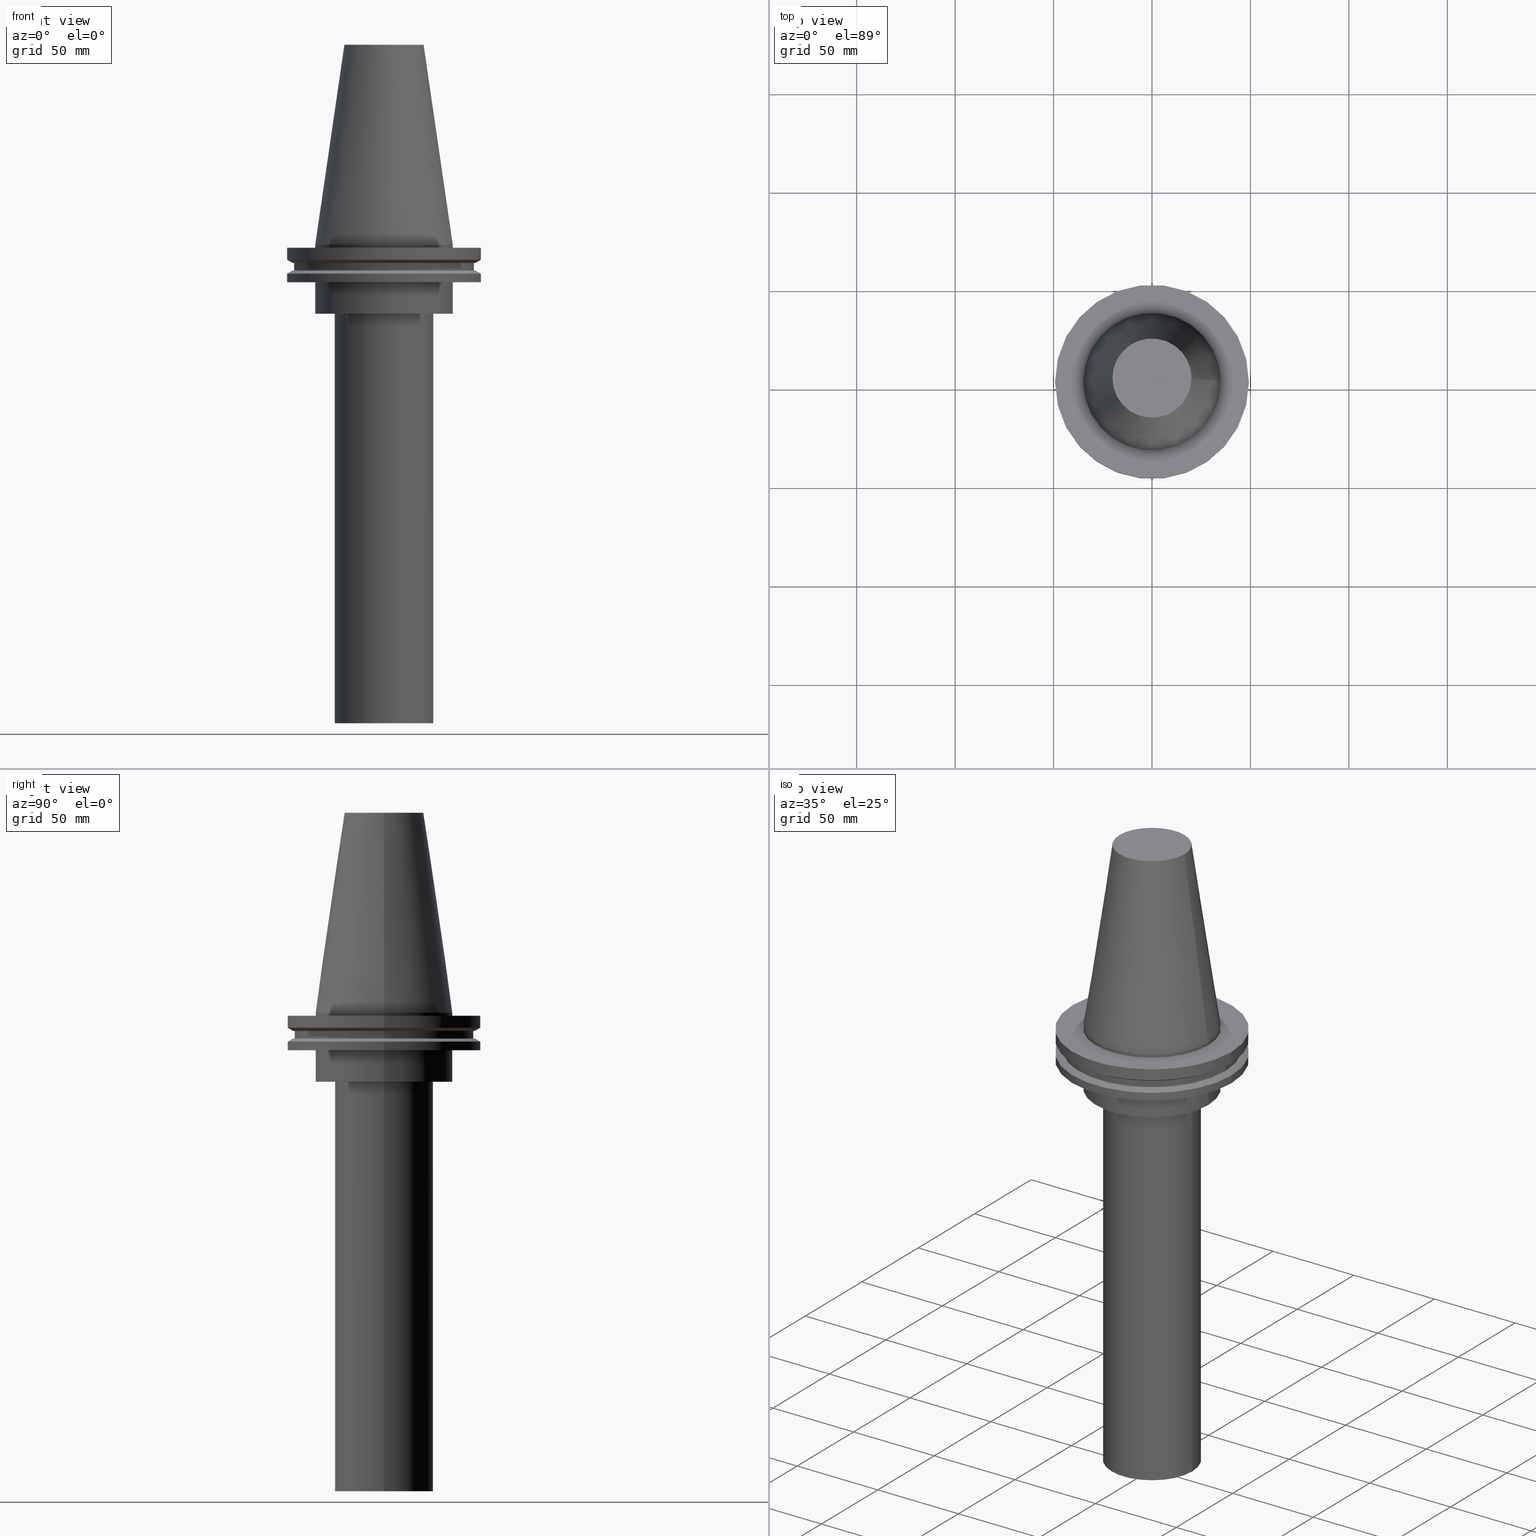
[diagram: canonical four-view strip — front | top / right | iso, engineering-drawing reading convention]
A machine part, canonical four-view strip (front | top / right | iso — engineering-drawing reading convention). The complete STEP part file that produces these views, byte-faithful:
ISO-10303-21;
HEADER;
FILE_DESCRIPTION (( 'STEP AP203' ),
    '1' );
FILE_NAME ('11.368.656.stp',
    '2022-03-09T15:21:32',
    ( '' ),
    ( '' ),
    'SwSTEP 2.0',
    'SolidWorks 2021',
    '' );
FILE_SCHEMA (( 'CONFIG_CONTROL_DESIGN' ));
ENDSEC;

DATA;
#1 = FACE_OUTER_BOUND ( 'NONE', #138, .T. ) ;
#2 = CIRCLE ( 'NONE', #220, 34.92499999999999005 ) ;
#3 = DIRECTION ( 'NONE',  ( 1.000000000000000000, 0.000000000000000000, 0.000000000000000000 ) ) ;
#4 = DIRECTION ( 'NONE',  ( 1.000000000000000000, 0.000000000000000000, 0.000000000000000000 ) ) ;
#5 = CARTESIAN_POINT ( 'NONE',  ( 0.000000000000000000, 0.000000000000000000, -9.204999999999991189 ) ) ;
#6 = CIRCLE ( 'NONE', #282, 34.92499999999999716 ) ;
#7 = CIRCLE ( 'NONE', #78, 46.43919780457007818 ) ;
#8 = PERSON_AND_ORGANIZATION_ROLE ( 'design_supplier' ) ;
#9 = FACE_OUTER_BOUND ( 'NONE', #21, .T. ) ;
#10 = EDGE_CURVE ( 'NONE', #172, #172, #311, .T. ) ;
#11 = DIRECTION ( 'NONE',  ( 1.000000000000000000, 0.000000000000000000, 0.000000000000000000 ) ) ;
#12 = ORIENTED_EDGE ( 'NONE', *, *, #315, .F. ) ;
#13 = PLANE ( 'NONE',  #344 ) ;
#14 = AXIS2_PLACEMENT_3D ( 'NONE', #79, #18, #139 ) ;
#15 = CARTESIAN_POINT ( 'NONE',  ( 0.000000000000000000, 0.000000000000000000, -35.00000000000000000 ) ) ;
#16 = CARTESIAN_POINT ( 'NONE',  ( 34.92499999999999005, 0.000000000000000000, 0.000000000000000000 ) ) ;
#17 = EDGE_LOOP ( 'NONE', ( #382 ) ) ;
#18 = DIRECTION ( 'NONE',  ( -0.000000000000000000, -0.000000000000000000, 1.000000000000000000 ) ) ;
#19 = AXIS2_PLACEMENT_3D ( 'NONE', #223, #194, #99 ) ;
#20 = DIRECTION ( 'NONE',  ( 1.000000000000000000, 0.000000000000000000, 0.000000000000000000 ) ) ;
#21 = EDGE_LOOP ( 'NONE', ( #173 ) ) ;
#22 = EDGE_LOOP ( 'NONE', ( #327 ) ) ;
#23 = ADVANCED_FACE ( 'NONE', ( #51, #144 ), #266, .T. ) ;
#24 = CARTESIAN_POINT ( 'NONE',  ( 45.64500000000000313, 0.000000000000000000, -9.204999999999991189 ) ) ;
#25 = FACE_BOUND ( 'NONE', #365, .T. ) ;
#26 = DATE_AND_TIME ( #332, #242 ) ;
#27 = FACE_BOUND ( 'NONE', #22, .T. ) ;
#28 = CARTESIAN_POINT ( 'NONE',  ( 0.000000000000000000, 0.000000000000000000, 0.000000000000000000 ) ) ;
#29 = CARTESIAN_POINT ( 'NONE',  ( 0.000000000000000000, 0.000000000000000000, 0.000000000000000000 ) ) ;
#30 = AXIS2_PLACEMENT_3D ( 'NONE', #170, #81, #300 ) ;
#31 = FACE_OUTER_BOUND ( 'NONE', #326, .T. ) ;
#32 = COORDINATED_UNIVERSAL_TIME_OFFSET ( 6, 0, .BEHIND. ) ;
#33 = DIRECTION ( 'NONE',  ( 1.000000000000000000, 0.000000000000000000, 0.000000000000000000 ) ) ;
#34 = CARTESIAN_POINT ( 'NONE',  ( 0.000000000000000000, 0.000000000000000000, -1.499999999999987566 ) ) ;
#35 = DIRECTION ( 'NONE',  ( 1.000000000000000000, 0.000000000000000000, 0.000000000000000000 ) ) ;
#36 = LOCAL_TIME ( 9, 21, 32.00000000000000000, #165 ) ;
#37 = DIRECTION ( 'NONE',  ( -0.000000000000000000, -0.000000000000000000, 1.000000000000000000 ) ) ;
#38 = EDGE_LOOP ( 'NONE', ( #102 ) ) ;
#39 = CALENDAR_DATE ( 2022, 9, 3 ) ;
#40 = CARTESIAN_POINT ( 'NONE',  ( 0.000000000000000000, 0.000000000000000000, -13.05499999999999794 ) ) ;
#41 = PERSON_AND_ORGANIZATION ( #56, #125 ) ;
#42 = DIRECTION ( 'NONE',  ( -0.000000000000000000, -0.000000000000000000, 1.000000000000000000 ) ) ;
#43 = ADVANCED_FACE ( 'NONE', ( #169, #386 ), #107, .F. ) ;
#44 = ORIENTED_EDGE ( 'NONE', *, *, #50, .T. ) ;
#45 = EDGE_LOOP ( 'NONE', ( #320 ) ) ;
#46 = CIRCLE ( 'NONE', #204, 20.10819343178871321 ) ;
#47 = CC_DESIGN_PERSON_AND_ORGANIZATION_ASSIGNMENT ( #177, #155, ( #72 ) ) ;
#48 = ORIENTED_EDGE ( 'NONE', *, *, #10, .T. ) ;
#49 = EDGE_LOOP ( 'NONE', ( #394 ) ) ;
#50 = EDGE_CURVE ( 'NONE', #261, #261, #276, .T. ) ;
#51 = FACE_OUTER_BOUND ( 'NONE', #203, .T. ) ;
#52 = CIRCLE ( 'NONE', #92, 25.00000000000000000 ) ;
#53 = APPROVAL_PERSON_ORGANIZATION ( #211, #231, #57 ) ;
#54 = VERTEX_POINT ( 'NONE', #59 ) ;
#55 = CARTESIAN_POINT ( 'NONE',  ( 0.000000000000000000, 49.21499999999999631, -1.499999999999992895 ) ) ;
#56 = PERSON ( 'UNSPECIFIED', 'UNSPECIFIED', 'UNSPECIFIED', ('UNSPECIFIED'), ('UNSPECIFIED'), ('UNSPECIFIED') ) ;
#57 = APPROVAL_ROLE ( '' ) ;
#58 = DIRECTION ( 'NONE',  ( 1.000000000000000000, 0.000000000000000000, 0.000000000000000000 ) ) ;
#59 = CARTESIAN_POINT ( 'NONE',  ( 34.92499999999999716, 0.000000000000000000, -35.00000000000000000 ) ) ;
#60 = DIRECTION ( 'NONE',  ( -1.000000000000000000, 0.000000000000000000, -0.000000000000000000 ) ) ;
#61 = PLANE ( 'NONE',  #171 ) ;
#62 = CARTESIAN_POINT ( 'NONE',  ( 0.000000000000000000, 0.000000000000000000, -9.204999999999991189 ) ) ;
#63 = CARTESIAN_POINT ( 'NONE',  ( 0.000000000000000000, 0.000000000000000000, 101.5999999999999943 ) ) ;
#64 = AXIS2_PLACEMENT_3D ( 'NONE', #295, #73, #20 ) ;
#65 = APPROVAL_PERSON_ORGANIZATION ( #189, #392, #159 ) ;
#66 = APPROVAL_DATE_TIME ( #323, #231 ) ;
#67 = DIRECTION ( 'NONE',  ( -0.000000000000000000, -0.000000000000000000, 1.000000000000000000 ) ) ;
#68 = DATE_AND_TIME ( #39, #36 ) ;
#69 = CARTESIAN_POINT ( 'NONE',  ( 0.000000000000000000, 0.000000000000000000, 0.000000000000000000 ) ) ;
#70 = VERTEX_POINT ( 'NONE', #264 ) ;
#71 = AXIS2_PLACEMENT_3D ( 'NONE', #86, #183, #309 ) ;
#72 = PRODUCT ( '11.368.656', '11.368.656', '', ( #152 ) ) ;
#73 = DIRECTION ( 'NONE',  ( 0.000000000000000000, -0.000000000000000000, 1.000000000000000000 ) ) ;
#74 = ADVANCED_FACE ( 'NONE', ( #123, #88 ), #84, .T. ) ;
#75 = ORIENTED_EDGE ( 'NONE', *, *, #207, .F. ) ;
#76 = EDGE_LOOP ( 'NONE', ( #12 ) ) ;
#77 = AXIS2_PLACEMENT_3D ( 'NONE', #34, #67, #161 ) ;
#78 = AXIS2_PLACEMENT_3D ( 'NONE', #232, #143, #267 ) ;
#79 = CARTESIAN_POINT ( 'NONE',  ( 0.000000000000000000, 0.000000000000000000, -7.602389855251287187 ) ) ;
#80 = CARTESIAN_POINT ( 'NONE',  ( 49.21499999999998920, 0.000000000000000000, -14.65761014474876944 ) ) ;
#81 = DIRECTION ( 'NONE',  ( -0.000000000000000000, -0.000000000000000000, 1.000000000000000000 ) ) ;
#82 = CC_DESIGN_PERSON_AND_ORGANIZATION_ASSIGNMENT ( #83, #307, ( #312 ) ) ;
#83 = PERSON_AND_ORGANIZATION ( #56, #125 ) ;
#84 = CYLINDRICAL_SURFACE ( 'NONE', #197, 34.92499999999999716 ) ;
#85 = COORDINATED_UNIVERSAL_TIME_OFFSET ( 6, 0, .BEHIND. ) ;
#86 = CARTESIAN_POINT ( 'NONE',  ( 0.000000000000000000, 0.000000000000000000, -243.0000000000000000 ) ) ;
#87 = ADVANCED_FACE ( 'NONE', ( #25, #1 ), #124, .T. ) ;
#88 = FACE_OUTER_BOUND ( 'NONE', #202, .T. ) ;
#89 =( NAMED_UNIT ( * ) SI_UNIT ( $, .STERADIAN. ) SOLID_ANGLE_UNIT ( ) );
#90 = CARTESIAN_POINT ( 'NONE',  ( 0.000000000000000000, 25.00000000000000000, -243.0000000000000000 ) ) ;
#91 = CC_DESIGN_APPROVAL ( #392, ( #387 ) ) ;
#92 = AXIS2_PLACEMENT_3D ( 'NONE', #151, #185, #58 ) ;
#93 = DIRECTION ( 'NONE',  ( 1.000000000000000000, 0.000000000000000000, 0.000000000000000000 ) ) ;
#94 = ADVANCED_FACE ( 'NONE', ( #212 ), #187, .F. ) ;
#95 = ADVANCED_BREP_SHAPE_REPRESENTATION ( '11.368.656', ( #222, #351 ), #306 ) ;
#96 = CARTESIAN_POINT ( 'NONE',  ( 0.000000000000000000, 20.10819343178871321, 101.5999999999999943 ) ) ;
#97 = CC_DESIGN_PERSON_AND_ORGANIZATION_ASSIGNMENT ( #41, #8, ( #226 ) ) ;
#98 = PERSON_AND_ORGANIZATION_ROLE ( 'creator' ) ;
#99 = DIRECTION ( 'NONE',  ( 1.000000000000000000, 0.000000000000000000, 0.000000000000000000 ) ) ;
#100 = UNCERTAINTY_MEASURE_WITH_UNIT (LENGTH_MEASURE( 1.000000000000000082E-05 ), #184, 'distance_accuracy_value', 'NONE');
#101 = DIRECTION ( 'NONE',  ( -0.000000000000000000, -0.000000000000000000, 1.000000000000000000 ) ) ;
#102 = ORIENTED_EDGE ( 'NONE', *, *, #337, .F. ) ;
#103 = DIRECTION ( 'NONE',  ( -0.000000000000000000, -0.000000000000000000, 1.000000000000000000 ) ) ;
#104 = PRODUCT_RELATED_PRODUCT_CATEGORY ( 'detail', '', ( #72 ) ) ;
#105 = DIRECTION ( 'NONE',  ( 0.000000000000000000, 0.000000000000000000, -1.000000000000000000 ) ) ;
#106 = APPLICATION_CONTEXT ( 'configuration controlled 3d designs of mechanical parts and assemblies' ) ;
#107 = PLANE ( 'NONE',  #64 ) ;
#108 = CIRCLE ( 'NONE', #134, 34.92499999999999005 ) ;
#109 = ADVANCED_FACE ( 'NONE', ( #278, #341 ), #248, .F. ) ;
#110 = CC_DESIGN_APPROVAL ( #247, ( #312 ) ) ;
#111 = DIRECTION ( 'NONE',  ( 1.000000000000000000, 0.000000000000000000, 0.000000000000000000 ) ) ;
#112 = EDGE_LOOP ( 'NONE', ( #330 ) ) ;
#113 = EDGE_LOOP ( 'NONE', ( #233 ) ) ;
#114 = ORIENTED_EDGE ( 'NONE', *, *, #353, .T. ) ;
#115 = ADVANCED_FACE ( 'NONE', ( #216, #27 ), #61, .F. ) ;
#116 = CARTESIAN_POINT ( 'NONE',  ( 49.21499999999998920, 0.000000000000000000, -19.04999999999999716 ) ) ;
#117 = CYLINDRICAL_SURFACE ( 'NONE', #329, 45.64500000000000313 ) ;
#118 = PLANE ( 'NONE',  #186 ) ;
#119 = CLOSED_SHELL ( 'NONE', ( #225, #229, #43, #74, #150, #294, #87, #109, #162, #115, #322, #280, #179, #23, #263, #94 ) ) ;
#120 = APPLICATION_PROTOCOL_DEFINITION ( 'international standard', 'config_control_design', 1994, #106 ) ;
#121 = DIRECTION ( 'NONE',  ( -0.000000000000000000, -0.000000000000000000, 1.000000000000000000 ) ) ;
#122 = FACE_OUTER_BOUND ( 'NONE', #199, .T. ) ;
#123 = FACE_OUTER_BOUND ( 'NONE', #112, .T. ) ;
#124 = CONICAL_SURFACE ( 'NONE', #350, 49.21499999999998920, 1.047197551196554333 ) ;
#125 = ORGANIZATION ( 'UNSPECIFIED', 'UNSPECIFIED', '' ) ;
#126 = FACE_OUTER_BOUND ( 'NONE', #206, .T. ) ;
#127 = PERSON_AND_ORGANIZATION ( #56, #125 ) ;
#128 = DIRECTION ( 'NONE',  ( -0.000000000000000000, -0.000000000000000000, 1.000000000000000000 ) ) ;
#129 = ORIENTED_EDGE ( 'NONE', *, *, #219, .T. ) ;
#130 = SECURITY_CLASSIFICATION_LEVEL ( 'unclassified' ) ;
#131 = DIRECTION ( 'NONE',  ( 1.000000000000000000, 0.000000000000000000, 0.000000000000000000 ) ) ;
#132 = EDGE_LOOP ( 'NONE', ( #75 ) ) ;
#133 = DATE_TIME_ROLE ( 'classification_date' ) ;
#134 = AXIS2_PLACEMENT_3D ( 'NONE', #238, #335, #214 ) ;
#135 = CIRCLE ( 'NONE', #377, 49.21499999999998920 ) ;
#136 = EDGE_CURVE ( 'NONE', #293, #293, #46, .T. ) ;
#137 = CARTESIAN_POINT ( 'NONE',  ( 0.000000000000000000, 0.000000000000000000, -14.65761014474876944 ) ) ;
#138 = EDGE_LOOP ( 'NONE', ( #390 ) ) ;
#139 = DIRECTION ( 'NONE',  ( 1.000000000000000000, 0.000000000000000000, 0.000000000000000000 ) ) ;
#140 = LOCAL_TIME ( 9, 21, 32.00000000000000000, #85 ) ;
#141 = PRODUCT_DEFINITION_SHAPE ( 'NONE', 'NONE',  #312 ) ;
#142 = ORIENTED_EDGE ( 'NONE', *, *, #303, .T. ) ;
#143 = DIRECTION ( 'NONE',  ( -0.000000000000000000, -0.000000000000000000, 1.000000000000000000 ) ) ;
#144 = FACE_OUTER_BOUND ( 'NONE', #201, .T. ) ;
#145 = ORIENTED_EDGE ( 'NONE', *, *, #315, .T. ) ;
#146 = AXIS2_PLACEMENT_3D ( 'NONE', #63, #317, #131 ) ;
#147 = DIRECTION ( 'NONE',  ( 0.000000000000000000, -0.000000000000000000, 1.000000000000000000 ) ) ;
#148 = APPLICATION_CONTEXT ( 'configuration controlled 3d designs of mechanical parts and assemblies' ) ;
#149 = DATE_TIME_ROLE ( 'creation_date' ) ;
#150 = ADVANCED_FACE ( 'NONE', ( #153, #395 ), #157, .F. ) ;
#151 = CARTESIAN_POINT ( 'NONE',  ( 0.000000000000000000, 0.000000000000000000, -35.00000000000000000 ) ) ;
#152 = MECHANICAL_CONTEXT ( 'NONE', #106, 'mechanical' ) ;
#153 = FACE_OUTER_BOUND ( 'NONE', #360, .T. ) ;
#154 = CIRCLE ( 'NONE', #71, 25.00000000000000000 ) ;
#155 = PERSON_AND_ORGANIZATION_ROLE ( 'design_owner' ) ;
#156 = DIRECTION ( 'NONE',  ( -0.000000000000000000, -0.000000000000000000, 1.000000000000000000 ) ) ;
#157 = PLANE ( 'NONE',  #209 ) ;
#158 = DATE_AND_TIME ( #193, #328 ) ;
#159 = APPROVAL_ROLE ( '' ) ;
#160 = CC_DESIGN_APPROVAL ( #231, ( #226 ) ) ;
#161 = DIRECTION ( 'NONE',  ( 1.000000000000000000, 0.000000000000000000, 0.000000000000000000 ) ) ;
#162 = ADVANCED_FACE ( 'NONE', ( #122, #367 ), #117, .T. ) ;
#163 = CALENDAR_DATE ( 2022, 9, 3 ) ;
#164 = FACE_OUTER_BOUND ( 'NONE', #361, .T. ) ;
#165 = COORDINATED_UNIVERSAL_TIME_OFFSET ( 6, 0, .BEHIND. ) ;
#166 = AXIS2_PLACEMENT_3D ( 'NONE', #291, #188, #385 ) ;
#167 = DIRECTION ( 'NONE',  ( 1.000000000000000000, 0.000000000000000000, 0.000000000000000000 ) ) ;
#168 = EDGE_CURVE ( 'NONE', #174, #174, #108, .T. ) ;
#169 = FACE_BOUND ( 'NONE', #287, .T. ) ;
#170 = CARTESIAN_POINT ( 'NONE',  ( 0.000000000000000000, 0.000000000000000000, -19.04999999999999716 ) ) ;
#171 = AXIS2_PLACEMENT_3D ( 'NONE', #244, #314, #93 ) ;
#172 = VERTEX_POINT ( 'NONE', #299 ) ;
#173 = ORIENTED_EDGE ( 'NONE', *, *, #252, .F. ) ;
#174 = VERTEX_POINT ( 'NONE', #301 ) ;
#175 = ORIENTED_EDGE ( 'NONE', *, *, #168, .T. ) ;
#176 = CC_DESIGN_PERSON_AND_ORGANIZATION_ASSIGNMENT ( #127, #321, ( #387 ) ) ;
#177 = PERSON_AND_ORGANIZATION ( #56, #125 ) ;
#178 = DIRECTION ( 'NONE',  ( 1.000000000000000000, 0.000000000000000000, 0.000000000000000000 ) ) ;
#179 = ADVANCED_FACE ( 'NONE', ( #273, #308 ), #118, .F. ) ;
#180 = VERTEX_POINT ( 'NONE', #369 ) ;
#181 = DIRECTION ( 'NONE',  ( -1.000000000000000000, 0.000000000000000000, -0.000000000000000000 ) ) ;
#182 = VERTEX_POINT ( 'NONE', #215 ) ;
#183 = DIRECTION ( 'NONE',  ( -0.000000000000000000, -0.000000000000000000, 1.000000000000000000 ) ) ;
#184 =( LENGTH_UNIT ( ) NAMED_UNIT ( * ) SI_UNIT ( .MILLI., .METRE. ) );
#185 = DIRECTION ( 'NONE',  ( -0.000000000000000000, -0.000000000000000000, 1.000000000000000000 ) ) ;
#186 = AXIS2_PLACEMENT_3D ( 'NONE', #55, #371, #60 ) ;
#187 = PLANE ( 'NONE',  #362 ) ;
#188 = DIRECTION ( 'NONE',  ( -0.000000000000000000, -0.000000000000000000, 1.000000000000000000 ) ) ;
#189 = PERSON_AND_ORGANIZATION ( #56, #125 ) ;
#190 = FACE_OUTER_BOUND ( 'NONE', #17, .T. ) ;
#191 = CONICAL_SURFACE ( 'NONE', #19, 46.43919780457007818, 1.047197551196575205 ) ;
#192 = ORIENTED_EDGE ( 'NONE', *, *, #353, .F. ) ;
#193 = CALENDAR_DATE ( 2022, 9, 3 ) ;
#194 = DIRECTION ( 'NONE',  ( -0.000000000000000000, -0.000000000000000000, 1.000000000000000000 ) ) ;
#195 = APPROVAL_STATUS ( 'not_yet_approved' ) ;
#196 = EDGE_CURVE ( 'NONE', #388, #388, #52, .T. ) ;
#197 = AXIS2_PLACEMENT_3D ( 'NONE', #305, #121, #4 ) ;
#198 = VERTEX_POINT ( 'NONE', #16 ) ;
#199 = EDGE_LOOP ( 'NONE', ( #349 ) ) ;
#200 = CC_DESIGN_DATE_AND_TIME_ASSIGNMENT ( #68, #133, ( #387 ) ) ;
#201 = EDGE_LOOP ( 'NONE', ( #175 ) ) ;
#202 = EDGE_LOOP ( 'NONE', ( #145 ) ) ;
#203 = EDGE_LOOP ( 'NONE', ( #255 ) ) ;
#204 = AXIS2_PLACEMENT_3D ( 'NONE', #240, #271, #33 ) ;
#205 = EDGE_LOOP ( 'NONE', ( #142 ) ) ;
#206 = EDGE_LOOP ( 'NONE', ( #44 ) ) ;
#207 = EDGE_CURVE ( 'NONE', #70, #70, #154, .T. ) ;
#208 = DIRECTION ( 'NONE',  ( 0.000000000000000000, -0.000000000000000000, 1.000000000000000000 ) ) ;
#209 = AXIS2_PLACEMENT_3D ( 'NONE', #339, #208, #279 ) ;
#210 = APPROVAL_PERSON_ORGANIZATION ( #342, #247, #239 ) ;
#211 = PERSON_AND_ORGANIZATION ( #56, #125 ) ;
#212 = FACE_OUTER_BOUND ( 'NONE', #132, .T. ) ;
#213 = DIRECTION ( 'NONE',  ( 0.000000000000000000, 0.000000000000000000, 1.000000000000000000 ) ) ;
#214 = DIRECTION ( 'NONE',  ( 1.000000000000000000, 0.000000000000000000, 0.000000000000000000 ) ) ;
#215 = CARTESIAN_POINT ( 'NONE',  ( 46.43919780457007818, 0.000000000000000000, -9.204999999999991189 ) ) ;
#216 = FACE_OUTER_BOUND ( 'NONE', #262, .T. ) ;
#217 = CARTESIAN_POINT ( 'NONE',  ( 0.000000000000000000, 0.000000000000000000, 101.5999999999999943 ) ) ;
#218 = CARTESIAN_POINT ( 'NONE',  ( 0.000000000000000000, 0.000000000000000000, 101.5999999999999943 ) ) ;
#219 = EDGE_CURVE ( 'NONE', #198, #198, #2, .T. ) ;
#220 = AXIS2_PLACEMENT_3D ( 'NONE', #29, #275, #3 ) ;
#221 = FACE_BOUND ( 'NONE', #254, .T. ) ;
#222 = MANIFOLD_SOLID_BREP ( 'CKB', #119 ) ;
#223 = CARTESIAN_POINT ( 'NONE',  ( 0.000000000000000000, 0.000000000000000000, -9.204999999999991189 ) ) ;
#224 = CYLINDRICAL_SURFACE ( 'NONE', #146, 49.21499999999998920 ) ;
#225 = ADVANCED_FACE ( 'NONE', ( #310, #31 ), #325, .T. ) ;
#226 = PRODUCT_DEFINITION_FORMATION_WITH_SPECIFIED_SOURCE ( 'ANY', '', #72, .NOT_KNOWN. ) ;
#227 = ORIENTED_EDGE ( 'NONE', *, *, #50, .F. ) ;
#228 = EDGE_LOOP ( 'NONE', ( #269 ) ) ;
#229 = ADVANCED_FACE ( 'NONE', ( #164 ), #13, .F. ) ;
#230 = EDGE_LOOP ( 'NONE', ( #364 ) ) ;
#231 = APPROVAL ( #338, 'UNSPECIFIED' ) ;
#232 = CARTESIAN_POINT ( 'NONE',  ( 0.000000000000000000, 0.000000000000000000, -13.05499999999999794 ) ) ;
#233 = ORIENTED_EDGE ( 'NONE', *, *, #207, .T. ) ;
#234 = CALENDAR_DATE ( 2022, 9, 3 ) ;
#235 = EDGE_CURVE ( 'NONE', #296, #296, #357, .T. ) ;
#236 = ORIENTED_EDGE ( 'NONE', *, *, #375, .F. ) ;
#237 = DATE_AND_TIME ( #234, #140 ) ;
#238 = CARTESIAN_POINT ( 'NONE',  ( 0.000000000000000000, 0.000000000000000000, -1.499999999999987566 ) ) ;
#239 = APPROVAL_ROLE ( '' ) ;
#240 = CARTESIAN_POINT ( 'NONE',  ( 0.000000000000000000, 0.000000000000000000, 101.5999999999999801 ) ) ;
#241 = AXIS2_PLACEMENT_3D ( 'NONE', #40, #103, #355 ) ;
#242 = LOCAL_TIME ( 9, 21, 32.00000000000000000, #32 ) ;
#243 = DIRECTION ( 'NONE',  ( 1.000000000000000000, 0.000000000000000000, 0.000000000000000000 ) ) ;
#244 = CARTESIAN_POINT ( 'NONE',  ( 0.000000000000000000, 46.43919780457007818, -9.204999999999998295 ) ) ;
#245 = VERTEX_POINT ( 'NONE', #373 ) ;
#246 = CARTESIAN_POINT ( 'NONE',  ( 0.000000000000000000, 45.64500000000000313, -13.05499999999999794 ) ) ;
#247 = APPROVAL ( #313, 'UNSPECIFIED' ) ;
#248 = PLANE ( 'NONE',  #260 ) ;
#249 = AXIS2_PLACEMENT_3D ( 'NONE', #298, #292, #259 ) ;
#250 = AXIS2_PLACEMENT_3D ( 'NONE', #137, #258, #111 ) ;
#251 = DIRECTION ( 'NONE',  ( -1.000000000000000000, 0.000000000000000000, 0.000000000000000000 ) ) ;
#252 = EDGE_CURVE ( 'NONE', #340, #340, #256, .T. ) ;
#253 = DIRECTION ( 'NONE',  ( 1.000000000000000000, 0.000000000000000000, 0.000000000000000000 ) ) ;
#254 = EDGE_LOOP ( 'NONE', ( #114 ) ) ;
#255 = ORIENTED_EDGE ( 'NONE', *, *, #219, .F. ) ;
#256 = CIRCLE ( 'NONE', #77, 49.21499999999999631 ) ;
#257 = SHAPE_DEFINITION_REPRESENTATION ( #141, #95 ) ;
#258 = DIRECTION ( 'NONE',  ( -0.000000000000000000, -0.000000000000000000, 1.000000000000000000 ) ) ;
#259 = DIRECTION ( 'NONE',  ( 1.000000000000000000, 0.000000000000000000, 0.000000000000000000 ) ) ;
#260 = AXIS2_PLACEMENT_3D ( 'NONE', #246, #372, #181 ) ;
#261 = VERTEX_POINT ( 'NONE', #363 ) ;
#262 = EDGE_LOOP ( 'NONE', ( #192 ) ) ;
#263 = ADVANCED_FACE ( 'NONE', ( #381, #378 ), #288, .T. ) ;
#264 = CARTESIAN_POINT ( 'NONE',  ( 25.00000000000000000, 0.000000000000000000, -243.0000000000000000 ) ) ;
#265 = ORIENTED_EDGE ( 'NONE', *, *, #136, .T. ) ;
#266 = CYLINDRICAL_SURFACE ( 'NONE', #249, 34.92499999999999005 ) ;
#267 = DIRECTION ( 'NONE',  ( 1.000000000000000000, 0.000000000000000000, 0.000000000000000000 ) ) ;
#268 = AXIS2_PLACEMENT_3D ( 'NONE', #218, #354, #324 ) ;
#269 = ORIENTED_EDGE ( 'NONE', *, *, #136, .F. ) ;
#270 = CARTESIAN_POINT ( 'NONE',  ( 49.21499999999999631, 0.000000000000000000, -1.499999999999987566 ) ) ;
#271 = DIRECTION ( 'NONE',  ( -0.000000000000000000, -0.000000000000000000, 1.000000000000000000 ) ) ;
#272 = VERTEX_POINT ( 'NONE', #116 ) ;
#273 = FACE_BOUND ( 'NONE', #230, .T. ) ;
#274 =( NAMED_UNIT ( * ) PLANE_ANGLE_UNIT ( ) SI_UNIT ( $, .RADIAN. ) );
#275 = DIRECTION ( 'NONE',  ( -0.000000000000000000, -0.000000000000000000, 1.000000000000000000 ) ) ;
#276 = CIRCLE ( 'NONE', #14, 49.21500000000000341 ) ;
#277 = VERTEX_POINT ( 'NONE', #80 ) ;
#278 = FACE_BOUND ( 'NONE', #38, .T. ) ;
#279 = DIRECTION ( 'NONE',  ( 1.000000000000000000, 0.000000000000000000, 0.000000000000000000 ) ) ;
#280 = ADVANCED_FACE ( 'NONE', ( #9, #126 ), #316, .T. ) ;
#281 = DIRECTION ( 'NONE',  ( -1.000000000000000000, 0.000000000000000000, -0.000000000000000000 ) ) ;
#282 = AXIS2_PLACEMENT_3D ( 'NONE', #15, #128, #253 ) ;
#283 = CIRCLE ( 'NONE', #319, 46.43919780457007818 ) ;
#284 = COORDINATED_UNIVERSAL_TIME_OFFSET ( 6, 0, .BEHIND. ) ;
#285 = CC_DESIGN_PERSON_AND_ORGANIZATION_ASSIGNMENT ( #352, #98, ( #226 ) ) ;
#286 = DIRECTION ( 'NONE',  ( 0.000000000000000000, 0.000000000000000000, -1.000000000000000000 ) ) ;
#287 = EDGE_LOOP ( 'NONE', ( #333 ) ) ;
#288 = CYLINDRICAL_SURFACE ( 'NONE', #166, 25.00000000000000000 ) ;
#289 = ORIENTED_EDGE ( 'NONE', *, *, #303, .F. ) ;
#290 = COORDINATED_UNIVERSAL_TIME_OFFSET ( 6, 0, .BEHIND. ) ;
#291 = CARTESIAN_POINT ( 'NONE',  ( 0.000000000000000000, 0.000000000000000000, 0.000000000000000000 ) ) ;
#292 = DIRECTION ( 'NONE',  ( -0.000000000000000000, -0.000000000000000000, 1.000000000000000000 ) ) ;
#293 = VERTEX_POINT ( 'NONE', #393 ) ;
#294 = ADVANCED_FACE ( 'NONE', ( #190, #347 ), #224, .T. ) ;
#295 = CARTESIAN_POINT ( 'NONE',  ( 0.000000000000000000, 34.92499999999999716, -35.00000000000000000 ) ) ;
#296 = VERTEX_POINT ( 'NONE', #24 ) ;
#297 = CC_DESIGN_DATE_AND_TIME_ASSIGNMENT ( #26, #149, ( #312 ) ) ;
#298 = CARTESIAN_POINT ( 'NONE',  ( 0.000000000000000000, 0.000000000000000000, 101.5999999999999943 ) ) ;
#299 = CARTESIAN_POINT ( 'NONE',  ( 34.92499999999999716, 0.000000000000000000, -19.04999999999999716 ) ) ;
#300 = DIRECTION ( 'NONE',  ( 1.000000000000000000, 0.000000000000000000, 0.000000000000000000 ) ) ;
#301 = CARTESIAN_POINT ( 'NONE',  ( 34.92499999999999005, 0.000000000000000000, -1.499999999999987566 ) ) ;
#302 = ORIENTED_EDGE ( 'NONE', *, *, #337, .T. ) ;
#303 = EDGE_CURVE ( 'NONE', #272, #272, #135, .T. ) ;
#304 = APPLICATION_PROTOCOL_DEFINITION ( 'international standard', 'config_control_design', 1994, #148 ) ;
#305 = CARTESIAN_POINT ( 'NONE',  ( 0.000000000000000000, 0.000000000000000000, 101.5999999999999943 ) ) ;
#306 =( GEOMETRIC_REPRESENTATION_CONTEXT ( 3 ) GLOBAL_UNCERTAINTY_ASSIGNED_CONTEXT ( ( #100 ) ) GLOBAL_UNIT_ASSIGNED_CONTEXT ( ( #184, #274, #89 ) ) REPRESENTATION_CONTEXT ( 'NONE', 'WORKASPACE' ) );
#307 = PERSON_AND_ORGANIZATION_ROLE ( 'creator' ) ;
#308 = FACE_OUTER_BOUND ( 'NONE', #331, .T. ) ;
#309 = DIRECTION ( 'NONE',  ( 1.000000000000000000, 0.000000000000000000, 0.000000000000000000 ) ) ;
#310 = FACE_BOUND ( 'NONE', #228, .T. ) ;
#311 = CIRCLE ( 'NONE', #30, 34.92499999999999716 ) ;
#312 = PRODUCT_DEFINITION ( 'UNKNOWN', '', #226, #318 ) ;
#313 = APPROVAL_STATUS ( 'not_yet_approved' ) ;
#314 = DIRECTION ( 'NONE',  ( 0.000000000000000000, -0.000000000000000000, 1.000000000000000000 ) ) ;
#315 = EDGE_CURVE ( 'NONE', #54, #54, #6, .T. ) ;
#316 = CYLINDRICAL_SURFACE ( 'NONE', #268, 49.21499999999999631 ) ;
#317 = DIRECTION ( 'NONE',  ( -0.000000000000000000, -0.000000000000000000, 1.000000000000000000 ) ) ;
#318 = DESIGN_CONTEXT ( 'detailed design', #148, 'design' ) ;
#319 = AXIS2_PLACEMENT_3D ( 'NONE', #62, #42, #167 ) ;
#320 = ORIENTED_EDGE ( 'NONE', *, *, #375, .T. ) ;
#321 = PERSON_AND_ORGANIZATION_ROLE ( 'classification_officer' ) ;
#322 = ADVANCED_FACE ( 'NONE', ( #379, #221 ), #191, .T. ) ;
#323 = DATE_AND_TIME ( #163, #336 ) ;
#324 = DIRECTION ( 'NONE',  ( 1.000000000000000000, 0.000000000000000000, 0.000000000000000000 ) ) ;
#325 = CONICAL_SURFACE ( 'NONE', #334, 34.92499999999999005, 0.1448138465474119452 ) ;
#326 = EDGE_LOOP ( 'NONE', ( #129 ) ) ;
#327 = ORIENTED_EDGE ( 'NONE', *, *, #235, .T. ) ;
#328 = LOCAL_TIME ( 9, 21, 32.00000000000000000, #290 ) ;
#329 = AXIS2_PLACEMENT_3D ( 'NONE', #217, #156, #178 ) ;
#330 = ORIENTED_EDGE ( 'NONE', *, *, #10, .F. ) ;
#331 = EDGE_LOOP ( 'NONE', ( #380 ) ) ;
#332 = CALENDAR_DATE ( 2022, 9, 3 ) ;
#333 = ORIENTED_EDGE ( 'NONE', *, *, #196, .T. ) ;
#334 = AXIS2_PLACEMENT_3D ( 'NONE', #69, #105, #251 ) ;
#335 = DIRECTION ( 'NONE',  ( -0.000000000000000000, -0.000000000000000000, 1.000000000000000000 ) ) ;
#336 = LOCAL_TIME ( 9, 21, 32.00000000000000000, #284 ) ;
#337 = EDGE_CURVE ( 'NONE', #180, #180, #370, .T. ) ;
#338 = APPROVAL_STATUS ( 'not_yet_approved' ) ;
#339 = CARTESIAN_POINT ( 'NONE',  ( 0.000000000000000000, 49.21499999999998920, -19.04999999999999716 ) ) ;
#340 = VERTEX_POINT ( 'NONE', #270 ) ;
#341 = FACE_OUTER_BOUND ( 'NONE', #45, .T. ) ;
#342 = PERSON_AND_ORGANIZATION ( #56, #125 ) ;
#343 = CARTESIAN_POINT ( 'NONE',  ( 0.000000000000000000, 0.000000000000000000, -14.65761014474876944 ) ) ;
#344 = AXIS2_PLACEMENT_3D ( 'NONE', #96, #286, #281 ) ;
#345 = CIRCLE ( 'NONE', #250, 49.21499999999998920 ) ;
#346 = DIRECTION ( 'NONE',  ( 1.000000000000000000, 0.000000000000000000, 0.000000000000000000 ) ) ;
#347 = FACE_OUTER_BOUND ( 'NONE', #205, .T. ) ;
#348 = APPROVAL_DATE_TIME ( #158, #392 ) ;
#349 = ORIENTED_EDGE ( 'NONE', *, *, #235, .F. ) ;
#350 = AXIS2_PLACEMENT_3D ( 'NONE', #343, #374, #376 ) ;
#351 = AXIS2_PLACEMENT_3D ( 'NONE', #28, #213, #243 ) ;
#352 = PERSON_AND_ORGANIZATION ( #56, #125 ) ;
#353 = EDGE_CURVE ( 'NONE', #182, #182, #283, .T. ) ;
#354 = DIRECTION ( 'NONE',  ( -0.000000000000000000, -0.000000000000000000, 1.000000000000000000 ) ) ;
#355 = DIRECTION ( 'NONE',  ( 1.000000000000000000, 0.000000000000000000, 0.000000000000000000 ) ) ;
#356 = EDGE_CURVE ( 'NONE', #277, #277, #345, .T. ) ;
#357 = CIRCLE ( 'NONE', #383, 45.64500000000000313 ) ;
#358 = EDGE_LOOP ( 'NONE', ( #48 ) ) ;
#359 = CARTESIAN_POINT ( 'NONE',  ( 25.00000000000000000, 0.000000000000000000, -35.00000000000000000 ) ) ;
#360 = EDGE_LOOP ( 'NONE', ( #289 ) ) ;
#361 = EDGE_LOOP ( 'NONE', ( #265 ) ) ;
#362 = AXIS2_PLACEMENT_3D ( 'NONE', #90, #147, #346 ) ;
#363 = CARTESIAN_POINT ( 'NONE',  ( 49.21500000000000341, 0.000000000000000000, -7.602389855251287187 ) ) ;
#364 = ORIENTED_EDGE ( 'NONE', *, *, #168, .F. ) ;
#365 = EDGE_LOOP ( 'NONE', ( #236 ) ) ;
#366 = APPROVAL_DATE_TIME ( #237, #247 ) ;
#367 = FACE_OUTER_BOUND ( 'NONE', #389, .T. ) ;
#368 = CC_DESIGN_SECURITY_CLASSIFICATION ( #387, ( #226 ) ) ;
#369 = CARTESIAN_POINT ( 'NONE',  ( 45.64500000000000313, 0.000000000000000000, -13.05499999999999794 ) ) ;
#370 = CIRCLE ( 'NONE', #241, 45.64500000000000313 ) ;
#371 = DIRECTION ( 'NONE',  ( 0.000000000000000000, 0.000000000000000000, -1.000000000000000000 ) ) ;
#372 = DIRECTION ( 'NONE',  ( 0.000000000000000000, 0.000000000000000000, -1.000000000000000000 ) ) ;
#373 = CARTESIAN_POINT ( 'NONE',  ( 46.43919780457007818, 0.000000000000000000, -13.05499999999999794 ) ) ;
#374 = DIRECTION ( 'NONE',  ( 0.000000000000000000, 0.000000000000000000, -1.000000000000000000 ) ) ;
#375 = EDGE_CURVE ( 'NONE', #245, #245, #7, .T. ) ;
#376 = DIRECTION ( 'NONE',  ( -1.000000000000000000, 0.000000000000000000, 0.000000000000000000 ) ) ;
#377 = AXIS2_PLACEMENT_3D ( 'NONE', #384, #101, #35 ) ;
#378 = FACE_OUTER_BOUND ( 'NONE', #113, .T. ) ;
#379 = FACE_OUTER_BOUND ( 'NONE', #391, .T. ) ;
#380 = ORIENTED_EDGE ( 'NONE', *, *, #252, .T. ) ;
#381 = FACE_OUTER_BOUND ( 'NONE', #49, .T. ) ;
#382 = ORIENTED_EDGE ( 'NONE', *, *, #356, .F. ) ;
#383 = AXIS2_PLACEMENT_3D ( 'NONE', #5, #37, #11 ) ;
#384 = CARTESIAN_POINT ( 'NONE',  ( 0.000000000000000000, 0.000000000000000000, -19.04999999999999716 ) ) ;
#385 = DIRECTION ( 'NONE',  ( 1.000000000000000000, 0.000000000000000000, 0.000000000000000000 ) ) ;
#386 = FACE_OUTER_BOUND ( 'NONE', #76, .T. ) ;
#387 = SECURITY_CLASSIFICATION ( '', '', #130 ) ;
#388 = VERTEX_POINT ( 'NONE', #359 ) ;
#389 = EDGE_LOOP ( 'NONE', ( #302 ) ) ;
#390 = ORIENTED_EDGE ( 'NONE', *, *, #356, .T. ) ;
#391 = EDGE_LOOP ( 'NONE', ( #227 ) ) ;
#392 = APPROVAL ( #195, 'UNSPECIFIED' ) ;
#393 = CARTESIAN_POINT ( 'NONE',  ( 20.10819343178871321, 0.000000000000000000, 101.5999999999999801 ) ) ;
#394 = ORIENTED_EDGE ( 'NONE', *, *, #196, .F. ) ;
#395 = FACE_BOUND ( 'NONE', #358, .T. ) ;
ENDSEC;
END-ISO-10303-21;
